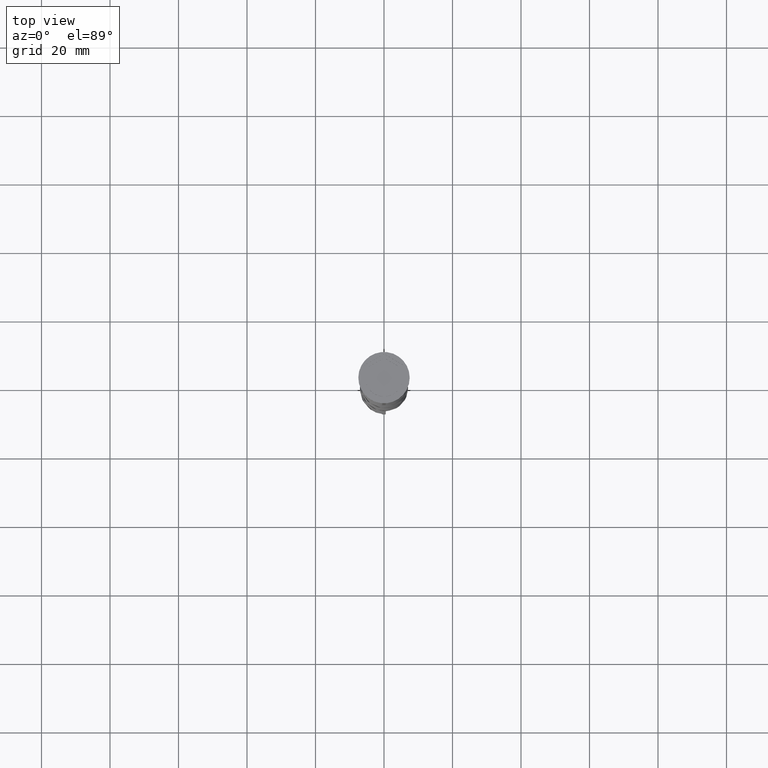
[diagram: clean part render]
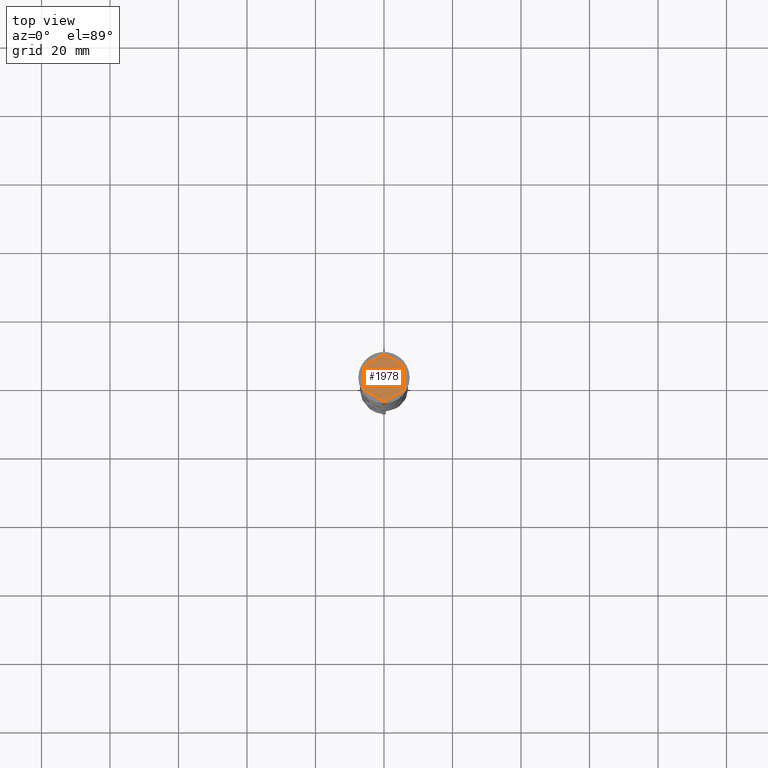
[diagram: same view with one face highlighted and labeled with its STEP entity id]
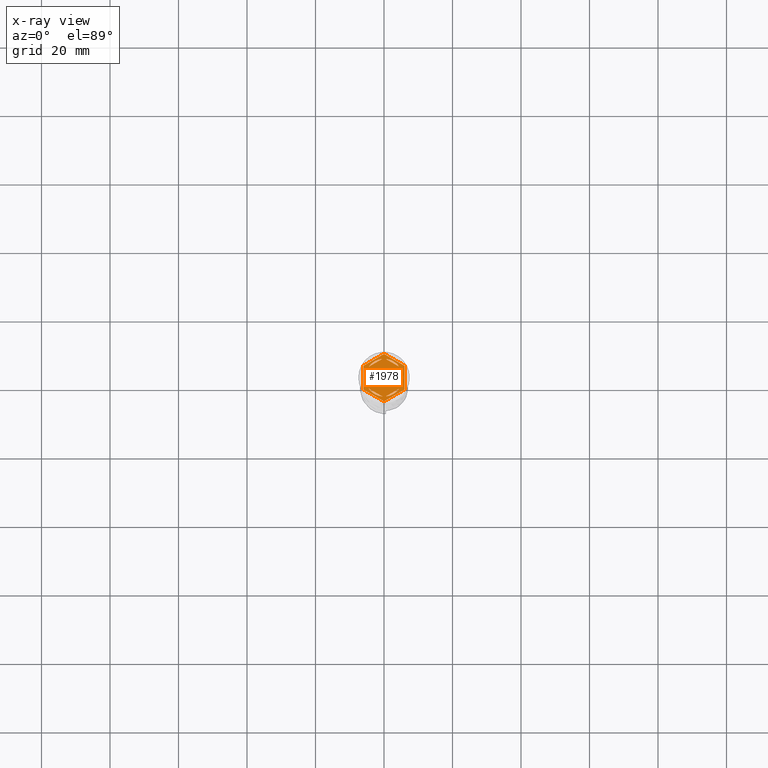
[diagram: x-ray of the same camera — body ghosted, the highlighted face saturated]
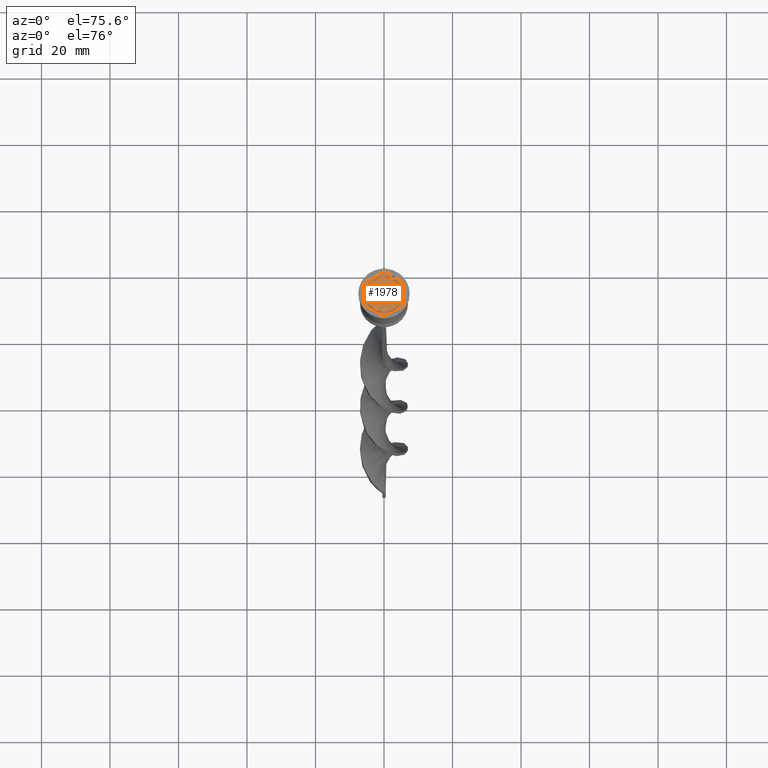
[diagram: same view with one face highlighted and labeled with its STEP entity id]
A machine part, top view. The second image highlights one B-rep face of the part: STEP entity #1978.
The next image is the same camera in x-ray: the body ghosted, the highlighted face saturated — about 0% of this face is hidden behind the body in this view.
A second angle (auxiliary view) of the same face is appended — the face is thin or edge-on in the first view.
In plain terms, the highlighted planar face has unit normal (0, 0, 1).
Its self-contained STEP definition (entity closure, byte-faithful):
#22 = CIRCLE ( 'NONE', #1851, 5.500000000000001776 ) ;
#44 = VERTEX_POINT ( 'NONE', #426 ) ;
#55 = LINE ( 'NONE', #2694, #1321 ) ;
#64 = VECTOR ( 'NONE', #2766, 1000.000000000000000 ) ;
#91 = CARTESIAN_POINT ( 'NONE',  ( 0.000000000000000000, 0.000000000000000000, -1.000000000000000000 ) ) ;
#124 = AXIS2_PLACEMENT_3D ( 'NONE', #939, #3060, #2093 ) ;
#130 = DIRECTION ( 'NONE',  ( 0.000000000000000000, 0.000000000000000000, 1.000000000000000000 ) ) ;
#149 = CARTESIAN_POINT ( 'NONE',  ( 0.000000000000000000, 0.000000000000000000, -1.000000000000000000 ) ) ;
#184 = EDGE_LOOP ( 'NONE', ( #1872, #3523 ) ) ;
#193 = VERTEX_POINT ( 'NONE', #1915 ) ;
#235 = DIRECTION ( 'NONE',  ( 0.8660254037844385966, 0.5000000000000000000, 0.000000000000000000 ) ) ;
#238 = VERTEX_POINT ( 'NONE', #3123 ) ;
#274 = CIRCLE ( 'NONE', #3531, 5.500000000000001776 ) ;
#309 = CARTESIAN_POINT ( 'NONE',  ( 5.999999999999998224, -3.464101615137753942, -1.000000000000000000 ) ) ;
#371 = CIRCLE ( 'NONE', #3447, 5.500000000000001776 ) ;
#426 = CARTESIAN_POINT ( 'NONE',  ( -4.484313483298445036, 3.184483095183233470, -1.000000000000000888 ) ) ;
#443 = ORIENTED_EDGE ( 'NONE', *, *, #3410, .F. ) ;
#445 = EDGE_CURVE ( 'NONE', #1501, #2736, #1091, .T. ) ;
#463 = DIRECTION ( 'NONE',  ( 0.000000000000000000, 0.000000000000000000, 1.000000000000000000 ) ) ;
#466 = CARTESIAN_POINT ( 'NONE',  ( 4.999999999999999112, -2.291287847477924355, -1.000000000000000888 ) ) ;
#485 = VERTEX_POINT ( 'NONE', #3480 ) ;
#549 = CARTESIAN_POINT ( 'NONE',  ( -5.000000000000000888, -2.886751345948129099, -1.000000000000000888 ) ) ;
#599 = EDGE_CURVE ( 'NONE', #1886, #1623, #743, .T. ) ;
#610 = LINE ( 'NONE', #2731, #2714 ) ;
#615 = ORIENTED_EDGE ( 'NONE', *, *, #1295, .F. ) ;
#625 = DIRECTION ( 'NONE',  ( 0.8660254037844387076, -0.4999999999999998335, 0.000000000000000000 ) ) ;
#648 = VECTOR ( 'NONE', #2688, 1000.000000000000000 ) ;
#671 = CARTESIAN_POINT ( 'NONE',  ( 0.000000000000000000, 6.928203230275506996, -1.000000000000000000 ) ) ;
#703 = EDGE_CURVE ( 'NONE', #193, #3470, #1671, .T. ) ;
#717 = DIRECTION ( 'NONE',  ( 1.000000000000000000, 0.000000000000000000, 0.000000000000000000 ) ) ;
#743 = CIRCLE ( 'NONE', #1835, 5.500000000000001776 ) ;
#760 = CARTESIAN_POINT ( 'NONE',  ( -0.5156865167015569629, 5.475770942661155161, -1.000000000000000888 ) ) ;
#777 = DIRECTION ( 'NONE',  ( 2.503857664561932376E-16, 1.000000000000000000, 0.000000000000000000 ) ) ;
#799 = DIRECTION ( 'NONE',  ( 1.000000000000000000, 0.000000000000000000, 0.000000000000000000 ) ) ;
#821 = LINE ( 'NONE', #1136, #3017 ) ;
#830 = CARTESIAN_POINT ( 'NONE',  ( -5.000000000000000888, -2.291287847477921247, -1.000000000000000888 ) ) ;
#848 = EDGE_CURVE ( 'NONE', #2382, #3750, #821, .T. ) ;
#881 = VECTOR ( 'NONE', #3217, 1000.000000000000114 ) ;
#893 = ORIENTED_EDGE ( 'NONE', *, *, #1245, .F. ) ;
#939 = CARTESIAN_POINT ( 'NONE',  ( 0.000000000000000000, 0.000000000000000000, -1.000000000000000000 ) ) ;
#960 = VECTOR ( 'NONE', #1802, 1000.000000000000000 ) ;
#975 = LINE ( 'NONE', #1945, #64 ) ;
#991 = CARTESIAN_POINT ( 'NONE',  ( -6.000000000000000000, -3.464101615137755719, -1.000000000000000000 ) ) ;
#1051 = DIRECTION ( 'NONE',  ( -3.004629197474317076E-16, -1.000000000000000000, 0.000000000000000000 ) ) ;
#1061 = VECTOR ( 'NONE', #1143, 1000.000000000000114 ) ;
#1077 = CARTESIAN_POINT ( 'NONE',  ( -0.5156865167015569629, -5.475770942661155161, -1.000000000000000888 ) ) ;
#1084 = EDGE_CURVE ( 'NONE', #1127, #3247, #3204, .T. ) ;
#1091 = LINE ( 'NONE', #3416, #881 ) ;
#1093 = FACE_BOUND ( 'NONE', #2713, .T. ) ;
#1118 = CARTESIAN_POINT ( 'NONE',  ( 4.484313483298442371, 3.184483095183238355, -1.000000000000000888 ) ) ;
#1127 = VERTEX_POINT ( 'NONE', #2913 ) ;
#1136 = CARTESIAN_POINT ( 'NONE',  ( 0.000000000000000000, 6.928203230275506996, -1.000000000000000000 ) ) ;
#1143 = DIRECTION ( 'NONE',  ( -0.8660254037844387076, -0.4999999999999997224, 0.000000000000000000 ) ) ;
#1170 = VERTEX_POINT ( 'NONE', #1118 ) ;
#1180 = VERTEX_POINT ( 'NONE', #830 ) ;
#1201 = EDGE_CURVE ( 'NONE', #485, #1277, #1836, .T. ) ;
#1245 = EDGE_CURVE ( 'NONE', #1277, #1180, #2821, .T. ) ;
#1277 = VERTEX_POINT ( 'NONE', #2750 ) ;
#1295 = EDGE_CURVE ( 'NONE', #1180, #485, #55, .T. ) ;
#1311 = CARTESIAN_POINT ( 'NONE',  ( 0.000000000000000000, 0.000000000000000000, -1.000000000000000000 ) ) ;
#1321 = VECTOR ( 'NONE', #3598, 1000.000000000000000 ) ;
#1335 = DIRECTION ( 'NONE',  ( 0.000000000000000000, 0.000000000000000000, 1.000000000000000000 ) ) ;
#1357 = CARTESIAN_POINT ( 'NONE',  ( 0.000000000000000000, 0.000000000000000000, -1.000000000000000000 ) ) ;
#1460 = DIRECTION ( 'NONE',  ( 1.000000000000000000, 0.000000000000000000, -0.000000000000000000 ) ) ;
#1471 = EDGE_CURVE ( 'NONE', #3247, #1127, #371, .T. ) ;
#1501 = VERTEX_POINT ( 'NONE', #991 ) ;
#1502 = LINE ( 'NONE', #2928, #1656 ) ;
#1503 = EDGE_CURVE ( 'NONE', #238, #2382, #1632, .T. ) ;
#1541 = EDGE_CURVE ( 'NONE', #44, #1571, #975, .T. ) ;
#1546 = CARTESIAN_POINT ( 'NONE',  ( 0.5156865167015526330, -5.475770942661155161, -1.000000000000000888 ) ) ;
#1571 = VERTEX_POINT ( 'NONE', #760 ) ;
#1574 = DIRECTION ( 'NONE',  ( -0.8660254037844387076, 0.4999999999999998335, 0.000000000000000000 ) ) ;
#1609 = CARTESIAN_POINT ( 'NONE',  ( -4.484313483298445036, -3.184483095183233470, -1.000000000000000888 ) ) ;
#1623 = VERTEX_POINT ( 'NONE', #1077 ) ;
#1632 = LINE ( 'NONE', #2841, #3140 ) ;
#1656 = VECTOR ( 'NONE', #235, 1000.000000000000227 ) ;
#1671 = LINE ( 'NONE', #3484, #2502 ) ;
#1715 = CARTESIAN_POINT ( 'NONE',  ( 0.000000000000000000, 0.000000000000000000, -1.000000000000000000 ) ) ;
#1732 = ORIENTED_EDGE ( 'NONE', *, *, #3617, .T. ) ;
#1758 = PLANE ( 'NONE',  #3773 ) ;
#1768 = CARTESIAN_POINT ( 'NONE',  ( 0.000000000000000000, 0.000000000000000000, -1.000000000000000000 ) ) ;
#1802 = DIRECTION ( 'NONE',  ( 0.000000000000000000, -1.000000000000000000, 0.000000000000000000 ) ) ;
#1810 = ORIENTED_EDGE ( 'NONE', *, *, #1541, .F. ) ;
#1835 = AXIS2_PLACEMENT_3D ( 'NONE', #91, #2235, #3725 ) ;
#1836 = CIRCLE ( 'NONE', #1950, 5.500000000000001776 ) ;
#1837 = CARTESIAN_POINT ( 'NONE',  ( 0.000000000000000000, 0.000000000000000000, -1.000000000000000000 ) ) ;
#1851 = AXIS2_PLACEMENT_3D ( 'NONE', #1357, #1335, #717 ) ;
#1872 = ORIENTED_EDGE ( 'NONE', *, *, #1471, .F. ) ;
#1886 = VERTEX_POINT ( 'NONE', #1609 ) ;
#1915 = CARTESIAN_POINT ( 'NONE',  ( 5.000000000000000888, 2.291287847477922135, -1.000000000000000888 ) ) ;
#1945 = CARTESIAN_POINT ( 'NONE',  ( 4.336808689942017736E-16, 5.773502691896259087, -1.000000000000000888 ) ) ;
#1950 = AXIS2_PLACEMENT_3D ( 'NONE', #1837, #3031, #2734 ) ;
#1963 = FACE_BOUND ( 'NONE', #3449, .T. ) ;
#1978 = ADVANCED_FACE ( 'NONE', ( #3438, #1963, #1985, #1093, #3220, #3157, #3502 ), #1758, .T. ) ;
#1985 = FACE_BOUND ( 'NONE', #184, .T. ) ;
#1987 = ORIENTED_EDGE ( 'NONE', *, *, #3642, .F. ) ;
#2026 = LINE ( 'NONE', #2630, #960 ) ;
#2027 = DIRECTION ( 'NONE',  ( -0.8660254037844385966, -0.4999999999999998890, 0.000000000000000000 ) ) ;
#2028 = ORIENTED_EDGE ( 'NONE', *, *, #1503, .T. ) ;
#2046 = CARTESIAN_POINT ( 'NONE',  ( 5.999999999999998224, -3.464101615137753942, -1.000000000000000000 ) ) ;
#2093 = DIRECTION ( 'NONE',  ( 1.000000000000000000, 0.000000000000000000, 0.000000000000000000 ) ) ;
#2098 = EDGE_CURVE ( 'NONE', #2230, #238, #3465, .T. ) ;
#2230 = VERTEX_POINT ( 'NONE', #309 ) ;
#2235 = DIRECTION ( 'NONE',  ( 0.000000000000000000, 0.000000000000000000, 1.000000000000000000 ) ) ;
#2289 = DIRECTION ( 'NONE',  ( 0.000000000000000000, 0.000000000000000000, 1.000000000000000000 ) ) ;
#2295 = EDGE_LOOP ( 'NONE', ( #2028, #3511, #3533, #3152, #1732, #3828 ) ) ;
#2382 = VERTEX_POINT ( 'NONE', #671 ) ;
#2436 = ORIENTED_EDGE ( 'NONE', *, *, #599, .F. ) ;
#2480 = ORIENTED_EDGE ( 'NONE', *, *, #3368, .F. ) ;
#2502 = VECTOR ( 'NONE', #1051, 1000.000000000000000 ) ;
#2630 = CARTESIAN_POINT ( 'NONE',  ( -6.000000000000000000, 3.464101615137752166, -1.000000000000000000 ) ) ;
#2632 = ORIENTED_EDGE ( 'NONE', *, *, #3892, .F. ) ;
#2641 = CARTESIAN_POINT ( 'NONE',  ( 0.5156865167015596274, 5.475770942661155161, -1.000000000000000888 ) ) ;
#2660 = DIRECTION ( 'NONE',  ( 1.000000000000000000, 0.000000000000000000, 0.000000000000000000 ) ) ;
#2684 = VERTEX_POINT ( 'NONE', #2641 ) ;
#2688 = DIRECTION ( 'NONE',  ( -0.8660254037844385966, 0.5000000000000001110, 0.000000000000000000 ) ) ;
#2693 = EDGE_LOOP ( 'NONE', ( #2853, #615, #893 ) ) ;
#2694 = CARTESIAN_POINT ( 'NONE',  ( -5.000000000000000888, 2.886751345948129099, -1.000000000000000888 ) ) ;
#2713 = EDGE_LOOP ( 'NONE', ( #2436, #1987 ) ) ;
#2714 = VECTOR ( 'NONE', #625, 1000.000000000000114 ) ;
#2731 = CARTESIAN_POINT ( 'NONE',  ( 5.000000000000000888, 2.886751345948130876, -1.000000000000000888 ) ) ;
#2734 = DIRECTION ( 'NONE',  ( 1.000000000000000000, 0.000000000000000000, 0.000000000000000000 ) ) ;
#2736 = VERTEX_POINT ( 'NONE', #3698 ) ;
#2750 = CARTESIAN_POINT ( 'NONE',  ( -5.500000000000001776, 0.000000000000000000, -1.000000000000000000 ) ) ;
#2766 = DIRECTION ( 'NONE',  ( 0.8660254037844385966, 0.5000000000000001110, -0.000000000000000000 ) ) ;
#2821 = CIRCLE ( 'NONE', #124, 5.500000000000001776 ) ;
#2841 = CARTESIAN_POINT ( 'NONE',  ( 6.000000000000000000, 3.464101615137753942, -1.000000000000000000 ) ) ;
#2853 = ORIENTED_EDGE ( 'NONE', *, *, #1201, .F. ) ;
#2913 = CARTESIAN_POINT ( 'NONE',  ( 4.484313483298445036, -3.184483095183233026, -1.000000000000000888 ) ) ;
#2928 = CARTESIAN_POINT ( 'NONE',  ( -4.280685092543093048E-16, -6.928203230275507885, -1.000000000000000000 ) ) ;
#2980 = EDGE_CURVE ( 'NONE', #1170, #2684, #274, .T. ) ;
#3017 = VECTOR ( 'NONE', #2027, 1000.000000000000227 ) ;
#3031 = DIRECTION ( 'NONE',  ( 0.000000000000000000, 0.000000000000000000, 1.000000000000000000 ) ) ;
#3060 = DIRECTION ( 'NONE',  ( 0.000000000000000000, 0.000000000000000000, 1.000000000000000000 ) ) ;
#3123 = CARTESIAN_POINT ( 'NONE',  ( 6.000000000000000000, 3.464101615137753942, -1.000000000000000000 ) ) ;
#3139 = DIRECTION ( 'NONE',  ( 1.000000000000000000, 0.000000000000000000, 0.000000000000000000 ) ) ;
#3140 = VECTOR ( 'NONE', #1574, 1000.000000000000000 ) ;
#3152 = ORIENTED_EDGE ( 'NONE', *, *, #445, .T. ) ;
#3157 = FACE_BOUND ( 'NONE', #3884, .T. ) ;
#3204 = LINE ( 'NONE', #3558, #1061 ) ;
#3217 = DIRECTION ( 'NONE',  ( 0.8660254037844388186, -0.4999999999999997224, 0.000000000000000000 ) ) ;
#3220 = FACE_BOUND ( 'NONE', #2693, .T. ) ;
#3247 = VERTEX_POINT ( 'NONE', #1546 ) ;
#3368 = EDGE_CURVE ( 'NONE', #3470, #193, #3464, .T. ) ;
#3372 = CARTESIAN_POINT ( 'NONE',  ( -6.000000000000000000, 3.464101615137752166, -1.000000000000000000 ) ) ;
#3410 = EDGE_CURVE ( 'NONE', #1571, #44, #22, .T. ) ;
#3416 = CARTESIAN_POINT ( 'NONE',  ( -6.000000000000000000, -3.464101615137755719, -1.000000000000000000 ) ) ;
#3438 = FACE_BOUND ( 'NONE', #3728, .T. ) ;
#3447 = AXIS2_PLACEMENT_3D ( 'NONE', #1311, #130, #3139 ) ;
#3449 = EDGE_LOOP ( 'NONE', ( #2480, #3466 ) ) ;
#3459 = AXIS2_PLACEMENT_3D ( 'NONE', #149, #3746, #799 ) ;
#3464 = CIRCLE ( 'NONE', #3459, 5.500000000000001776 ) ;
#3465 = LINE ( 'NONE', #2046, #3585 ) ;
#3466 = ORIENTED_EDGE ( 'NONE', *, *, #703, .F. ) ;
#3470 = VERTEX_POINT ( 'NONE', #466 ) ;
#3480 = CARTESIAN_POINT ( 'NONE',  ( -5.000000000000000888, 2.291287847477921247, -1.000000000000000888 ) ) ;
#3484 = CARTESIAN_POINT ( 'NONE',  ( 4.999999999999999112, -2.886751345948130432, -1.000000000000000888 ) ) ;
#3502 = FACE_OUTER_BOUND ( 'NONE', #2295, .T. ) ;
#3504 = LINE ( 'NONE', #549, #648 ) ;
#3511 = ORIENTED_EDGE ( 'NONE', *, *, #848, .T. ) ;
#3523 = ORIENTED_EDGE ( 'NONE', *, *, #1084, .F. ) ;
#3531 = AXIS2_PLACEMENT_3D ( 'NONE', #1768, #2289, #2660 ) ;
#3533 = ORIENTED_EDGE ( 'NONE', *, *, #3576, .T. ) ;
#3558 = CARTESIAN_POINT ( 'NONE',  ( -1.734723475976807094E-15, -5.773502691896258199, -1.000000000000000888 ) ) ;
#3576 = EDGE_CURVE ( 'NONE', #3750, #1501, #2026, .T. ) ;
#3585 = VECTOR ( 'NONE', #777, 1000.000000000000000 ) ;
#3598 = DIRECTION ( 'NONE',  ( 0.000000000000000000, 1.000000000000000000, 0.000000000000000000 ) ) ;
#3617 = EDGE_CURVE ( 'NONE', #2736, #2230, #1502, .T. ) ;
#3642 = EDGE_CURVE ( 'NONE', #1623, #1886, #3504, .T. ) ;
#3698 = CARTESIAN_POINT ( 'NONE',  ( -4.280685092543093048E-16, -6.928203230275507885, -1.000000000000000000 ) ) ;
#3725 = DIRECTION ( 'NONE',  ( 1.000000000000000000, 0.000000000000000000, 0.000000000000000000 ) ) ;
#3728 = EDGE_LOOP ( 'NONE', ( #3774, #2632 ) ) ;
#3746 = DIRECTION ( 'NONE',  ( 0.000000000000000000, 0.000000000000000000, 1.000000000000000000 ) ) ;
#3750 = VERTEX_POINT ( 'NONE', #3372 ) ;
#3773 = AXIS2_PLACEMENT_3D ( 'NONE', #1715, #463, #1460 ) ;
#3774 = ORIENTED_EDGE ( 'NONE', *, *, #2980, .F. ) ;
#3828 = ORIENTED_EDGE ( 'NONE', *, *, #2098, .T. ) ;
#3884 = EDGE_LOOP ( 'NONE', ( #443, #1810 ) ) ;
#3892 = EDGE_CURVE ( 'NONE', #2684, #1170, #610, .T. ) ;